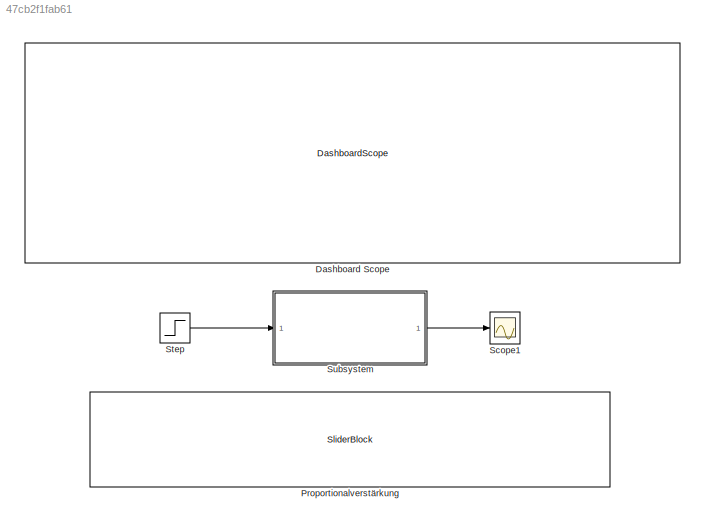
MODEL slx_47cb2f1fab61
KIND model
CONFIG AbsTol = auto
CONFIG EnableMultiTasking = off
CONFIG FixedStep = auto
CONFIG MaxStep = auto
CONFIG MinStep = auto
CONFIG RelTol = 1e-3
CONFIG SampleTimeConstraint = Unconstrained
CONFIG SolverName = VariableStepAuto
CONFIG StartTime = 0.0
CONFIG StopTime = 10
BLOCK [DashboardScope] Dashboard Scope
  Ymax = 0.5
  Ymin = -0.5
BLOCK [SliderBlock] Proportionalverstärkung
  LabelPosition = Hide
  ScaleMax = 0.5
  ScaleMin = -0.5
BLOCK [Scope] Scope1
  Floating = off
  NumInputPorts = 1
  Ports = [1]
  ScopeSpecificationString = Simulink.scopes.TimeScopeBlockCfg('CurrentConfiguration', extmgr.ConfigurationSet(extmgr.Configuration('Core','General UI',true),extmgr.Configuration('Core','Source UI',true),extmgr.Configuration('Sources','WiredSimulink',true,'DataLoggingVariableName','ScopeData1'),extmgr.Configuration('Visuals','Time Domain',true,'SerializedDisplays',{struct('MinYLimReal','-26340816.46755','MaxYLimReal','2147396...<+1414ch>
BLOCK [Step] Step
  SampleTime = 0
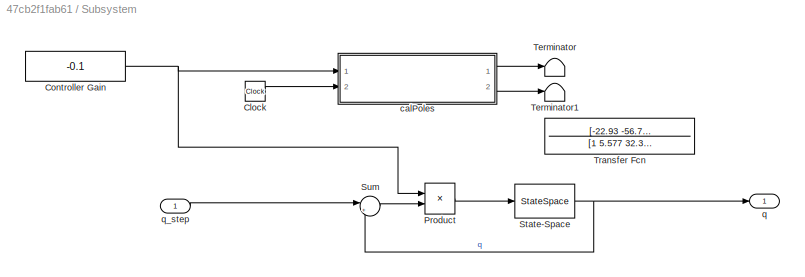
BLOCK [SubSystem] Subsystem
  Ports = [1, 1]
  RequestExecContextInheritance = off
BLOCK [Clock] Subsystem/Clock
BLOCK [Constant] Subsystem/Controller Gain
  Value = -0.1
BLOCK [Product] Subsystem/Product
  Ports = [2, 1]
BLOCK [StateSpace] Subsystem/State-Space
  A = [-2.66012810859045,0.964626643293723;-25.4503792669483,-2.91714290772888]
  B = [-0.168296921492111;-22.9341283239374]
  C = [0 1]
  D = 0
  InitialCondition = 0
  Ports = [1, 1]
BLOCK [Sum] Subsystem/Sum
  Inputs = |+-
  Ports = [2, 1]
BLOCK [Terminator] Subsystem/Terminator
BLOCK [Terminator] Subsystem/Terminator1
BLOCK [TransferFcn] Subsystem/Transfer Fcn
  Commented = on
  Denominator = [1 5.577 32.31]
  Numerator = [-22.93 -56.72]
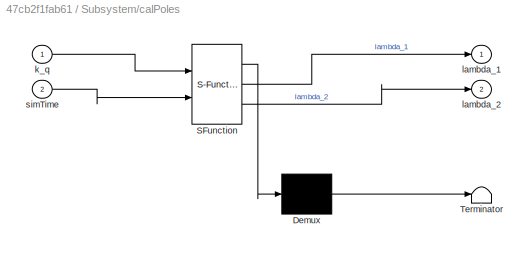
BLOCK [SubSystem] Subsystem/calPoles
  ErrorFcn = Stateflow.Translate.translate
  PermitHierarchicalResolution = ExplicitOnly
  Ports = [2, 2]
  RequestExecContextInheritance = off
  SFBlockType = MATLAB Function
  TreatAsAtomicUnit = on
BLOCK [Demux] Subsystem/calPoles/ Demux 
  Outputs = 1
  Ports = [1, 1]
BLOCK [S-Function] Subsystem/calPoles/ SFunction 
  EnableBusSupport = on
  FunctionName = sf_sfun
  PortCounts = [2 3]
  Ports = [2, 3]
  SFcnIsStateOwnerBlock = off
  SFunctionDeploymentMode = off
  Tag = Stateflow S-Function 2
BLOCK [Terminator] Subsystem/calPoles/ Terminator 
BLOCK [Inport] Subsystem/calPoles/k_q
BLOCK [Outport] Subsystem/calPoles/lambda_1
BLOCK [Outport] Subsystem/calPoles/lambda_2
  Port = 2
BLOCK [Inport] Subsystem/calPoles/simTime
  Port = 2
BLOCK [Outport] Subsystem/q
BLOCK [Inport] Subsystem/q_step
LINE Step:1 -> Subsystem:1
LINE Subsystem/Clock:1 -> Subsystem/calPoles:2
NET Subsystem/Controller Gain:1 -> Subsystem/Product:1, Subsystem/calPoles:1
LINE Subsystem/Product:1 -> Subsystem/State-Space:1
NET Subsystem/State-Space:1 -> Subsystem/Sum:2, Subsystem/q:1
LINE Subsystem/Sum:1 -> Subsystem/Product:2
LINE Subsystem/calPoles:1 -> Subsystem/Terminator:1
LINE Subsystem/calPoles:2 -> Subsystem/Terminator1:1
LINE Subsystem/q_step:1 -> Subsystem/Sum:1
LINE Subsystem:1 -> Scope1:1
note: NET lines group one-source signal fan-out (src -> all destinations, sorted); 1:1 wires keep LINE
CHART Subsystem/calPoles states=1 transitions=1
  STATE_LABEL 'eML_blk_kernel()'
  STATE_LABEL 'SCRIPT:\nfunction [lambda_1,lambda_2] = calcPoles(k_q,simTime)\n\n% Anstellwinkelschwingung\nA = [-2.66012810859045,0.964626643293723;-25.4503792669483,-2.91714290772888];\nB = [-0.168296921492111;-22.9341283239374];\n\n\nZalphaV0   = A(1,1);\nM_alpha   = A(2,1);\nM_q       = A(2,2);\n\nZ_etaV0   = B(1,1);\nM_eta     = B(2,1);\n\n% Eigenbewegung/ chara. Polynom\ntmp = (M_eta*k_q - ZalphaV0 - M_q + Z_etaV0*k_q); %...<+725ch>'
CHART  states=0 transitions=0
